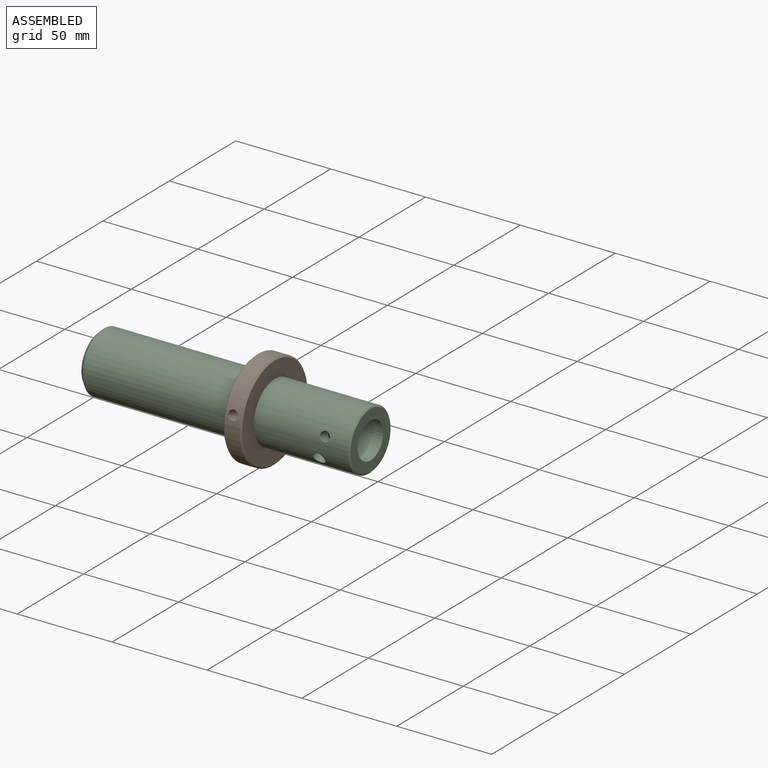
[diagram: assembled view]
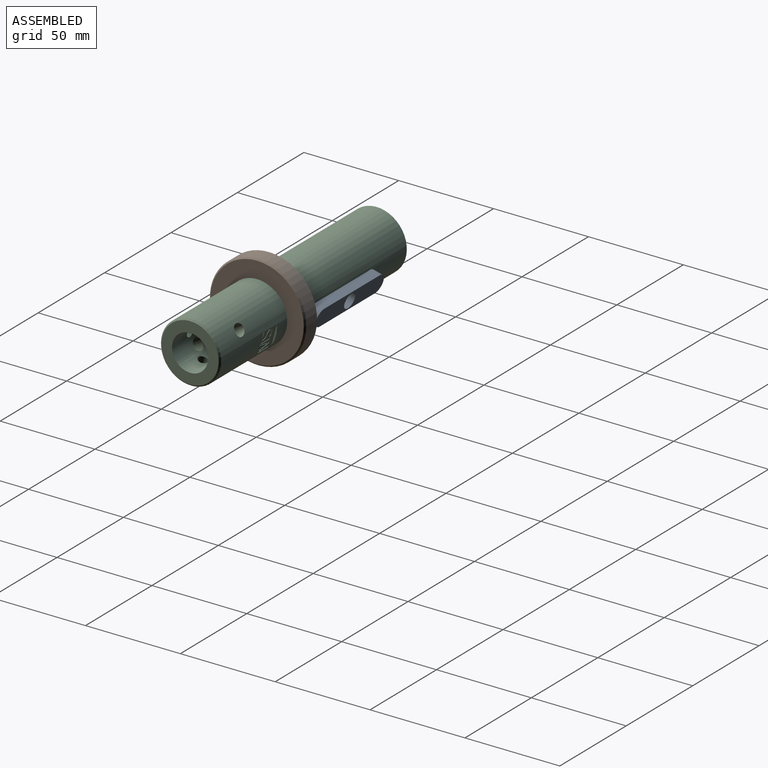
[diagram: assembled view, second angle]
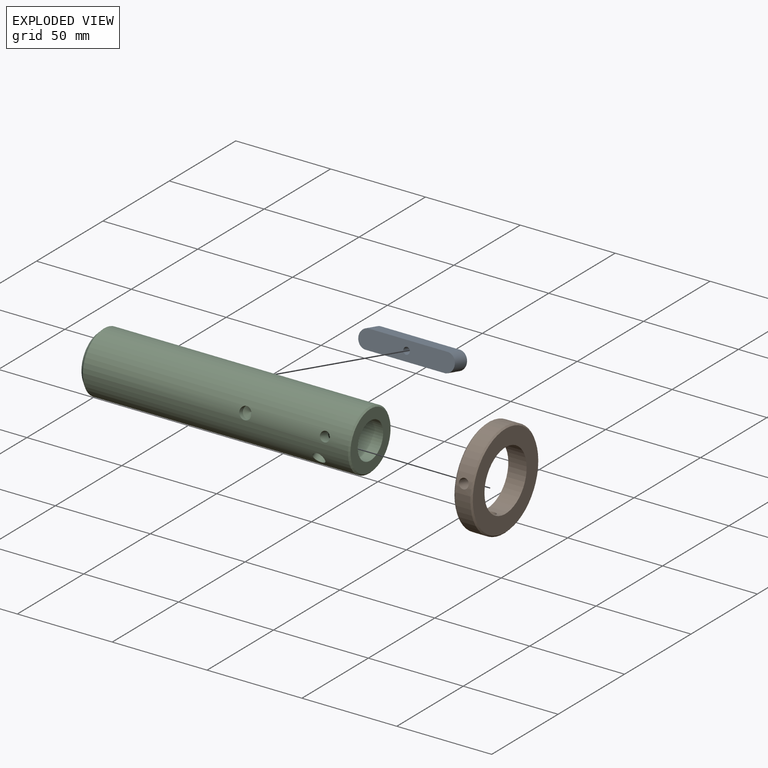
[diagram: exploded view]
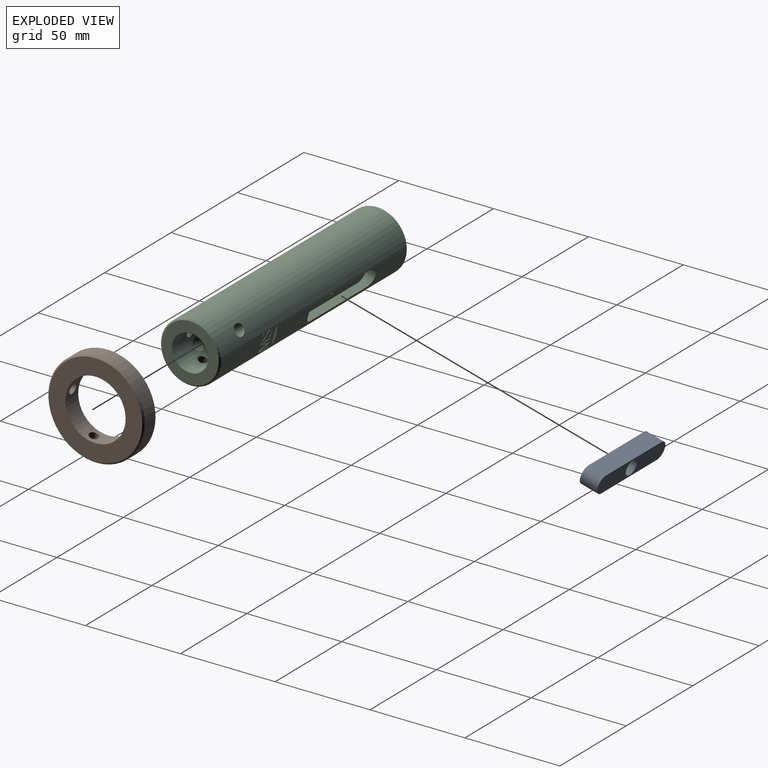
[diagram: exploded view, second angle]
ASSEMBLY  parts=3 mates=2
PART A: 9 faces, bbox 50.8x9.5x9.5 mm
  f0: plane 42.57x9.49mm, normal (0,1,0), area 403.8mm2, adj f1,f3,f4,f5
  f1: cylinder r=4.78mm len=9.49mm, axis (0,0,-1), area 129.9mm2, adj f0,f2,f4,f5
  f2: plane 42.57x9.49mm, normal (0,-1,0), area 403.8mm2, adj f1,f3,f4,f5
  f3: cylinder r=4.78mm len=9.49mm, axis (0,0,-1), area 129.9mm2, adj f0,f2,f4,f5
  f4: plane 50.8x9.47mm, normal (0,0,1), area 453.1mm2, adj f0,f1,f2,f3,f6
  f5: plane 50.8x9.47mm, normal (0,0,-1), area 413mm2, adj f0,f1,f2,f3,f8
  f6: cylinder r=1.73mm len=5.32mm, axis (0,0,-1), area 57.7mm2, adj f4,f7
  f7: plane 7.94x7.94mm, normal (0,0,-1), area 40.1mm2, adj f6,f8
  f8: cylinder r=3.97mm len=7.94mm, axis (0,0,-1), area 103.9mm2, adj f5,f7
PART B: 8 faces, bbox 9.7x50.8x50.8 mm
  f0: cylinder r=15.88mm len=31.75mm, axis (-1,0,0), area 921.5mm2, adj f2,f3,f6,f7
  f1: cylinder r=25.4mm len=50.8mm, axis (-1,0,0), area 1256.1mm2, adj f4,f5,f6,f7
  f2: plane 49.28x49.28mm, normal (1,0,0), area 1115.3mm2, adj f0,f4
  f3: plane 49.28x49.28mm, normal (-1,0,0), area 1115.3mm2, adj f0,f5
  f4: cone r=24.64mm half-angle=45deg, axis (-1,0,0), area 169.4mm2, adj f1,f2
  f5: cone r=25.4mm half-angle=45deg, axis (1,0,0), area 169.4mm2, adj f1,f3
  f6: cylinder r=2.55mm len=9.73mm, axis (0,0,1), area 153.4mm2, adj f0,f1
  f7: cylinder r=2.55mm len=9.73mm, axis (0,-1,0), area 153.4mm2, adj f0,f1
PART C: 65 faces, bbox 143x31.8x31.8 mm
  f0: cylinder r=15.88mm len=139.7mm, axis (-1,0,0), area 13151.6mm2, adj f2,f3,f6,f7,f8,f9,f11,f12
  f1: cylinder r=9.53mm len=25.4mm, axis (1,0,0), area 1414.5mm2, adj f3,f4,f12,f13,f61,f62
  f2: plane 12.7x11.18mm, normal (0,1,0), area 105.7mm2, adj f0,f14,f15,f16,f17,f18,f19,f20
  f3: cylinder r=3.17mm len=9.37mm, axis (0,0.71,0.71), area 128.9mm2, adj f0,f1
  f4: plane 30.23x30.23mm, normal (1,0,0), area 432.5mm2, adj f1,f56
  f5: plane 26.67x26.67mm, normal (-1,0,0), area 558.6mm2, adj f11
  f6: plane 42.57x4.36mm, normal (0,0,-1), area 185.5mm2, adj f0,f7,f9,f10
  f7: cylinder r=4.78mm len=9.47mm, axis (0,1,0), area 65mm2, adj f0,f6,f8,f10
  f8: plane 42.57x4.36mm, normal (0,0,1), area 185.5mm2, adj f0,f7,f9,f10
  f9: cylinder r=4.78mm len=9.47mm, axis (0,1,0), area 65mm2, adj f0,f6,f8,f10
  f10: plane 50.8x9.47mm, normal (0,1,0), area 453.1mm2, adj f6,f7,f8,f9,f64
  f11: cone r=15.88mm half-angle=45deg, axis (1,0,0), area 329.6mm2, adj f0,f5
  f12: cylinder r=3.17mm len=9.37mm, axis (0,0.71,0.71), area 128.9mm2, adj f0,f1
  f13: plane 19.05x19.05mm, normal (1,0,0), area 285mm2, adj f1
  f14: plane 11.18x1.02mm, normal (-1,0,0), area 7.6mm2, adj f0,f2
  f15: plane 11.18x1.02mm, normal (1,0,0), area 7.6mm2, adj f0,f2
  f16: plane 0.92x0.25mm, normal (0,0,1), area 0.2mm2, adj f2,f17,f35,f36
  f17: extruded ~2.14x0.36mm, area 0.6mm2, adj f2,f16,f18,f36
  f18: extruded ~2.03x0.57mm, area 0.5mm2, adj f2,f17,f19,f36
  f19: extruded ~1.56x0.72mm, area 0.5mm2, adj f2,f18,f20,f36
  f20: extruded ~1.24x0.43mm, area 0.3mm2, adj f2,f19,f21,f36
  f21: extruded ~1.7x0.94mm, area 0.5mm2, adj f2,f20,f22,f36
  f22: extruded ~1.4x0.69mm, area 0.4mm2, adj f2,f21,f23,f36
  f23: extruded ~0.85x0.34mm, area 0.2mm2, adj f2,f22,f24,f36
  f24: extruded ~1.51x1.08mm, area 0.5mm2, adj f2,f23,f25,f36
  f25: extruded ~1.86x0.4mm, area 0.5mm2, adj f2,f24,f26,f36
  f26: plane 0.85x0.33mm, normal (0.36,0,-0.93), area 0.2mm2, adj f2,f25,f27,f36
  f27: extruded ~2.15x0.4mm, area 0.6mm2, adj f2,f26,f28,f36
  f28: extruded ~1.82x0.51mm, area 0.5mm2, adj f2,f27,f29,f36
  f29: extruded ~1.41x0.66mm, area 0.4mm2, adj f2,f28,f30,f36
  f30: extruded ~1.36x0.47mm, area 0.4mm2, adj f2,f29,f31,f36
  f31: extruded ~1.54x0.9mm, area 0.5mm2, adj f2,f30,f32,f36
  f32: extruded ~1.48x0.69mm, area 0.4mm2, adj f2,f31,f33,f36
  f33: extruded ~0.83x0.36mm, area 0.2mm2, adj f2,f32,f34,f36
  f34: extruded ~1.81x1.24mm, area 0.6mm2, adj f2,f33,f35,f36
  f35: extruded ~2.14x0.44mm, area 0.6mm2, adj f2,f16,f34,f36
  f36: plane 7.77x4.89mm, normal (0,1,0), area 14.4mm2, adj f16,f17,f18,f19,f20,f21,f22,f23
  f37: plane 0.8x0.25mm, normal (1,0,0), area 0.2mm2, adj f2,f38,f54,f55
  f38: plane 6.61x1.44mm, normal (0.21,0,-0.98), area 1.7mm2, adj f2,f37,f39,f55
  f39: plane 0.25x0.04mm, normal (1,0,0), area 0mm2, adj f2,f38,f40,f55
  f40: extruded ~2.1x0.25mm, area 0.5mm2, adj f2,f39,f41,f55
  f41: plane 4.52x0.25mm, normal (0,0,1), area 1.1mm2, adj f2,f40,f42,f55
  f42: plane 0.78x0.25mm, normal (1,0,0), area 0.2mm2, adj f2,f41,f43,f55
  f43: plane 7.56x0.25mm, normal (0,0,-1), area 1.9mm2, adj f2,f42,f44,f55
  f44: plane 1.28x0.25mm, normal (-1,0,0), area 0.3mm2, adj f2,f43,f45,f55
  f45: plane 6.16x1.28mm, normal (-0.2,0,0.98), area 1.6mm2, adj f2,f44,f46,f55
  f46: plane 0.25x0.03mm, normal (-1,0,0), area 0mm2, adj f2,f45,f47,f55
  f47: plane 6.16x1.29mm, normal (-0.21,0,-0.98), area 1.6mm2, adj f2,f46,f48,f55
  f48: plane 1.3x0.25mm, normal (-1,0,0), area 0.3mm2, adj f2,f47,f49,f55
  f49: plane 7.56x0.25mm, normal (0,0,1), area 1.9mm2, adj f2,f48,f50,f55
  f50: plane 0.79x0.25mm, normal (1,0,0), area 0.2mm2, adj f2,f49,f51,f55
  f51: plane 4.58x0.25mm, normal (0,0,-1), area 1.2mm2, adj f2,f50,f52,f55
  f52: extruded ~2.02x0.25mm, area 0.5mm2, adj f2,f51,f53,f55
  f53: plane 0.25x0.04mm, normal (1,0,0), area 0mm2, adj f2,f52,f54,f55
  f54: plane 6.6x1.46mm, normal (0.22,0,0.98), area 1.7mm2, adj f2,f37,f53,f55
  f55: plane 7.56x5.18mm, normal (0,1,0), area 21.9mm2, adj f37,f38,f39,f40,f41,f42,f43,f44
  f56: cone r=15.11mm half-angle=45deg, axis (-1,0,0), area 104.9mm2, adj f0,f4
  f57: cylinder r=3.17mm len=6.35mm, axis (0,0,-1), area 53.9mm2, adj f0,f58
  f58: cone r=0mm half-angle=59deg, axis (0,0,-1), area 36.9mm2, adj f57
  f59: cylinder r=3.17mm len=6.35mm, axis (0,-1,0), area 53.9mm2, adj f0,f60
  f60: cone r=0mm half-angle=59deg, axis (0,-1,0), area 36.9mm2, adj f59
  f61: cylinder r=2.55mm len=6.7mm, axis (0,0,-1), area 103mm2, adj f0,f1
  f62: cylinder r=2.55mm len=6.7mm, axis (0,-1,0), area 103mm2, adj f0,f1
  f63: cone r=0mm half-angle=59deg, axis (0,1,0), area 10.9mm2, adj f64
  f64: cylinder r=1.73mm len=11.59mm, axis (0,1,0), area 125.8mm2, adj f10,f63
PLACE A rot(axis=(1,0,0),75deg) t=(-4.94,110.79,103.57)mm
PLACE B rot(axis=(1,0,0),75deg) t=(27.19,91.2,108.82)mm
PLACE C rot(axis=(-1,0,0),15deg) t=(-55.74,91.2,108.82)mm
MATE fastened C.f9 <-> A.f3  axis (0,0.97,-0.26) through (15.68,101.63,106.02)mm
MATE cylindrical C.f0 <-> B.f0  axis (1,0,0) through (86.5,91.2,108.82)mm
